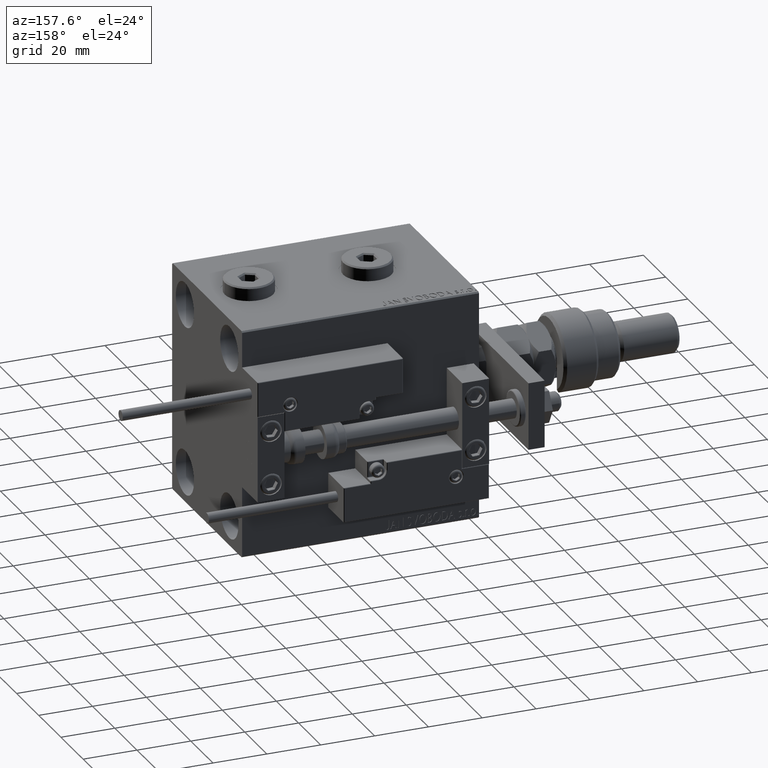
[diagram: clean part render]
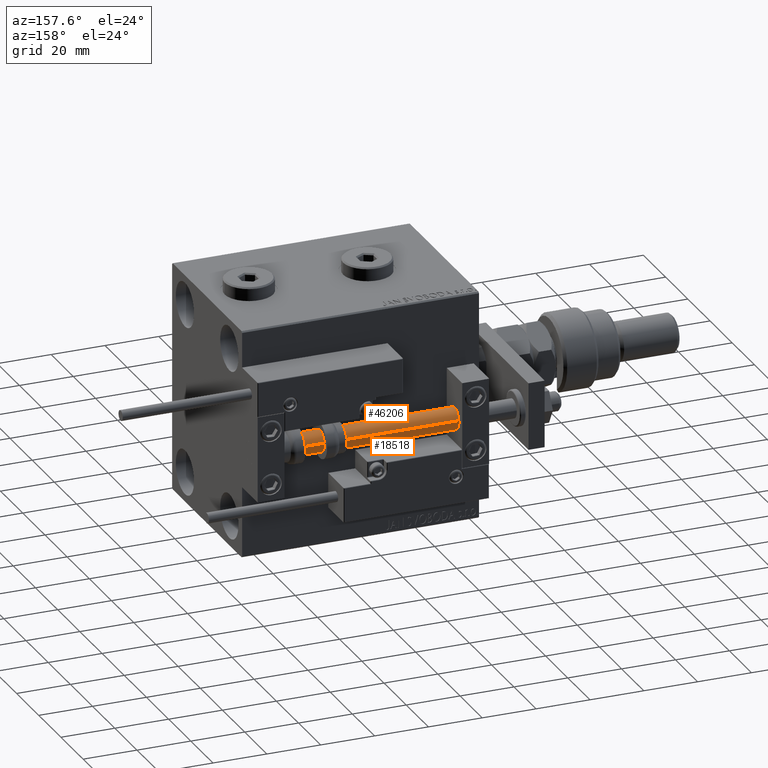
[diagram: same view with one multi-face feature highlighted, each face labeled with its STEP entity id]
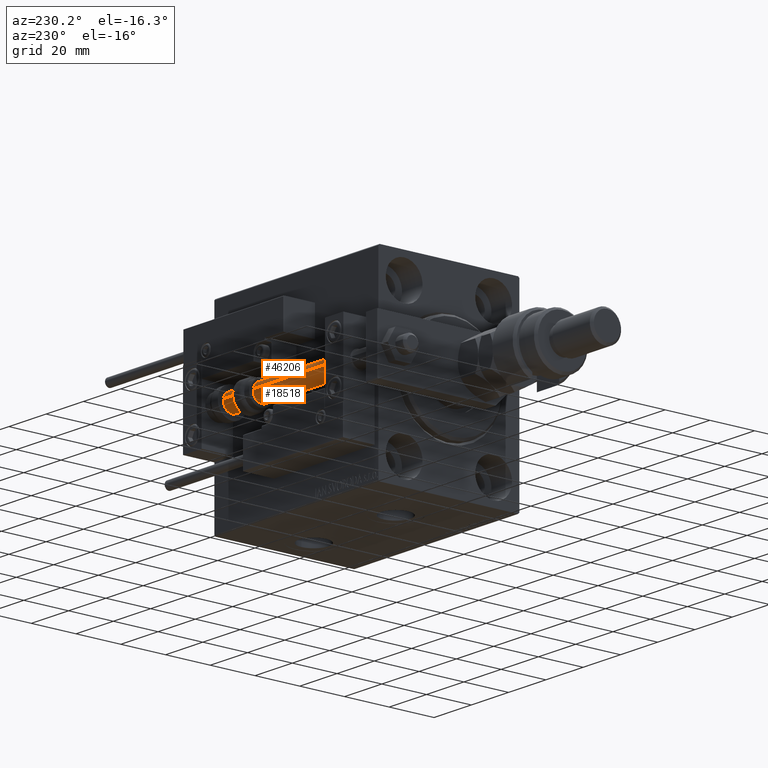
[diagram: same view with one multi-face feature highlighted, each face labeled with its STEP entity id]
A machine part, auxiliary view. The highlighted faces form ONE feature: a constant-radius fillet chain: 2 tangent blend faces with common blend radius 4 mm. The faces share edges in the B-rep.
A second angle (auxiliary view) of the same feature is appended — it is thin or edge-on in the first view.
Their STEP definitions:
[1] entity #18518 (Cylinder):
#769 = VERTEX_POINT ( 'NONE', #6206 ) ;
#1862 = AXIS2_PLACEMENT_3D ( 'NONE', #16941, #42744, #50453 ) ;
#2002 = EDGE_CURVE ( 'NONE', #31301, #44869, #25242, .T. ) ;
#4520 = ORIENTED_EDGE ( 'NONE', *, *, #2002, .F. ) ;
#4875 = ORIENTED_EDGE ( 'NONE', *, *, #33525, .T. ) ;
#6206 = CARTESIAN_POINT ( 'NONE',  ( -4.000000000000000000, 0.000000000000000000, 2.000000000000029310 ) ) ;
#7008 = AXIS2_PLACEMENT_3D ( 'NONE', #45909, #8251, #11815 ) ;
#7011 = CARTESIAN_POINT ( 'NONE',  ( 0.000000000000000000, 0.000000000000000000, 88.00000000000000000 ) ) ;
#8251 = DIRECTION ( 'NONE',  ( -0.000000000000000000, -0.000000000000000000, 1.000000000000000000 ) ) ;
#8440 = VERTEX_POINT ( 'NONE', #10104 ) ;
#10104 = CARTESIAN_POINT ( 'NONE',  ( -4.000000000000000000, 0.000000000000000000, 88.00000000000000000 ) ) ;
#10596 = DIRECTION ( 'NONE',  ( -1.000000000000000000, 0.000000000000000000, 0.000000000000000000 ) ) ;
#11815 = DIRECTION ( 'NONE',  ( 1.000000000000000000, 0.000000000000000000, 0.000000000000000000 ) ) ;
#13660 = ORIENTED_EDGE ( 'NONE', *, *, #15302, .T. ) ;
#15302 = EDGE_CURVE ( 'NONE', #769, #44869, #15826, .T. ) ;
#15826 = CIRCLE ( 'NONE', #7008, 4.000000000000000000 ) ;
#16941 = CARTESIAN_POINT ( 'NONE',  ( 0.000000000000000000, 0.000000000000000000, 88.00000000000000000 ) ) ;
#18518 = ADVANCED_FACE ( 'NONE', ( #52646 ), #48245, .T. ) ;
#20837 = EDGE_CURVE ( 'NONE', #8440, #31301, #48391, .T. ) ;
#21127 = CARTESIAN_POINT ( 'NONE',  ( 4.000000000000000000, 4.898587196589412829E-16, 88.00000000000000000 ) ) ;
#25242 = LINE ( 'NONE', #21127, #36504 ) ;
#25683 = CARTESIAN_POINT ( 'NONE',  ( 4.000000000000000000, 4.898587196589412829E-16, 88.00000000000000000 ) ) ;
#29000 = AXIS2_PLACEMENT_3D ( 'NONE', #7011, #35092, #10596 ) ;
#29478 = EDGE_LOOP ( 'NONE', ( #4520, #48886, #4875, #13660 ) ) ;
#31301 = VERTEX_POINT ( 'NONE', #25683 ) ;
#31425 = LINE ( 'NONE', #48443, #33503 ) ;
#33503 = VECTOR ( 'NONE', #48174, 1000.000000000000000 ) ;
#33525 = EDGE_CURVE ( 'NONE', #8440, #769, #31425, .T. ) ;
#35092 = DIRECTION ( 'NONE',  ( -0.000000000000000000, -0.000000000000000000, -1.000000000000000000 ) ) ;
#36504 = VECTOR ( 'NONE', #47143, 1000.000000000000000 ) ;
#38310 = CARTESIAN_POINT ( 'NONE',  ( 4.000000000000000000, 4.898587196589412829E-16, 2.000000000000029310 ) ) ;
#42744 = DIRECTION ( 'NONE',  ( 0.000000000000000000, 0.000000000000000000, 1.000000000000000000 ) ) ;
#44869 = VERTEX_POINT ( 'NONE', #38310 ) ;
#45909 = CARTESIAN_POINT ( 'NONE',  ( 0.000000000000000000, 0.000000000000000000, 2.000000000000029310 ) ) ;
#47143 = DIRECTION ( 'NONE',  ( -0.000000000000000000, -0.000000000000000000, -1.000000000000000000 ) ) ;
#48174 = DIRECTION ( 'NONE',  ( -0.000000000000000000, -0.000000000000000000, -1.000000000000000000 ) ) ;
#48245 = CYLINDRICAL_SURFACE ( 'NONE', #29000, 4.000000000000000000 ) ;
#48391 = CIRCLE ( 'NONE', #1862, 4.000000000000000000 ) ;
#48443 = CARTESIAN_POINT ( 'NONE',  ( -4.000000000000000000, 0.000000000000000000, 88.00000000000000000 ) ) ;
#48886 = ORIENTED_EDGE ( 'NONE', *, *, #20837, .F. ) ;
#50453 = DIRECTION ( 'NONE',  ( 1.000000000000000000, 0.000000000000000000, 0.000000000000000000 ) ) ;
#52646 = FACE_OUTER_BOUND ( 'NONE', #29478, .T. ) ;
[2] entity #46206 (Cylinder):
#769 = VERTEX_POINT ( 'NONE', #6206 ) ;
#2002 = EDGE_CURVE ( 'NONE', #31301, #44869, #25242, .T. ) ;
#2190 = DIRECTION ( 'NONE',  ( -1.000000000000000000, 0.000000000000000000, 0.000000000000000000 ) ) ;
#3516 = ORIENTED_EDGE ( 'NONE', *, *, #2002, .T. ) ;
#4056 = EDGE_CURVE ( 'NONE', #31301, #8440, #14644, .T. ) ;
#6206 = CARTESIAN_POINT ( 'NONE',  ( -4.000000000000000000, 0.000000000000000000, 2.000000000000029310 ) ) ;
#8440 = VERTEX_POINT ( 'NONE', #10104 ) ;
#10104 = CARTESIAN_POINT ( 'NONE',  ( -4.000000000000000000, 0.000000000000000000, 88.00000000000000000 ) ) ;
#11897 = ORIENTED_EDGE ( 'NONE', *, *, #4056, .F. ) ;
#14644 = CIRCLE ( 'NONE', #29574, 4.000000000000000000 ) ;
#15206 = DIRECTION ( 'NONE',  ( 1.000000000000000000, 0.000000000000000000, 0.000000000000000000 ) ) ;
#15476 = DIRECTION ( 'NONE',  ( 0.000000000000000000, 0.000000000000000000, 1.000000000000000000 ) ) ;
#16604 = EDGE_CURVE ( 'NONE', #44869, #769, #50139, .T. ) ;
#17275 = DIRECTION ( 'NONE',  ( 1.000000000000000000, 0.000000000000000000, 0.000000000000000000 ) ) ;
#20910 = ORIENTED_EDGE ( 'NONE', *, *, #16604, .T. ) ;
#21127 = CARTESIAN_POINT ( 'NONE',  ( 4.000000000000000000, 4.898587196589412829E-16, 88.00000000000000000 ) ) ;
#22189 = DIRECTION ( 'NONE',  ( -0.000000000000000000, -0.000000000000000000, 1.000000000000000000 ) ) ;
#23239 = AXIS2_PLACEMENT_3D ( 'NONE', #40663, #23347, #2190 ) ;
#23347 = DIRECTION ( 'NONE',  ( -0.000000000000000000, -0.000000000000000000, -1.000000000000000000 ) ) ;
#23895 = FACE_OUTER_BOUND ( 'NONE', #42471, .T. ) ;
#25242 = LINE ( 'NONE', #21127, #36504 ) ;
#25683 = CARTESIAN_POINT ( 'NONE',  ( 4.000000000000000000, 4.898587196589412829E-16, 88.00000000000000000 ) ) ;
#28027 = CYLINDRICAL_SURFACE ( 'NONE', #23239, 4.000000000000000000 ) ;
#29574 = AXIS2_PLACEMENT_3D ( 'NONE', #36085, #15476, #15206 ) ;
#31301 = VERTEX_POINT ( 'NONE', #25683 ) ;
#31425 = LINE ( 'NONE', #48443, #33503 ) ;
#31574 = ORIENTED_EDGE ( 'NONE', *, *, #33525, .F. ) ;
#33503 = VECTOR ( 'NONE', #48174, 1000.000000000000000 ) ;
#33525 = EDGE_CURVE ( 'NONE', #8440, #769, #31425, .T. ) ;
#36085 = CARTESIAN_POINT ( 'NONE',  ( 0.000000000000000000, 0.000000000000000000, 88.00000000000000000 ) ) ;
#36504 = VECTOR ( 'NONE', #47143, 1000.000000000000000 ) ;
#37849 = AXIS2_PLACEMENT_3D ( 'NONE', #42536, #22189, #17275 ) ;
#38310 = CARTESIAN_POINT ( 'NONE',  ( 4.000000000000000000, 4.898587196589412829E-16, 2.000000000000029310 ) ) ;
#40663 = CARTESIAN_POINT ( 'NONE',  ( 0.000000000000000000, 0.000000000000000000, 88.00000000000000000 ) ) ;
#42471 = EDGE_LOOP ( 'NONE', ( #11897, #3516, #20910, #31574 ) ) ;
#42536 = CARTESIAN_POINT ( 'NONE',  ( 0.000000000000000000, 0.000000000000000000, 2.000000000000029310 ) ) ;
#44869 = VERTEX_POINT ( 'NONE', #38310 ) ;
#46206 = ADVANCED_FACE ( 'NONE', ( #23895 ), #28027, .T. ) ;
#47143 = DIRECTION ( 'NONE',  ( -0.000000000000000000, -0.000000000000000000, -1.000000000000000000 ) ) ;
#48174 = DIRECTION ( 'NONE',  ( -0.000000000000000000, -0.000000000000000000, -1.000000000000000000 ) ) ;
#48443 = CARTESIAN_POINT ( 'NONE',  ( -4.000000000000000000, 0.000000000000000000, 88.00000000000000000 ) ) ;
#50139 = CIRCLE ( 'NONE', #37849, 4.000000000000000000 ) ;